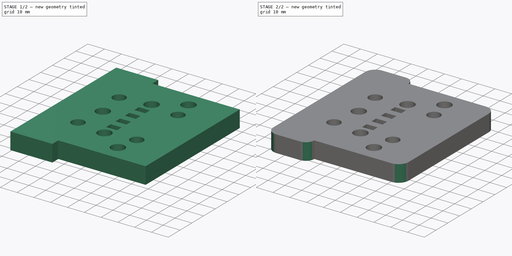
[diagram: build sequence overview — one tinted view per stage of 2, left to right]
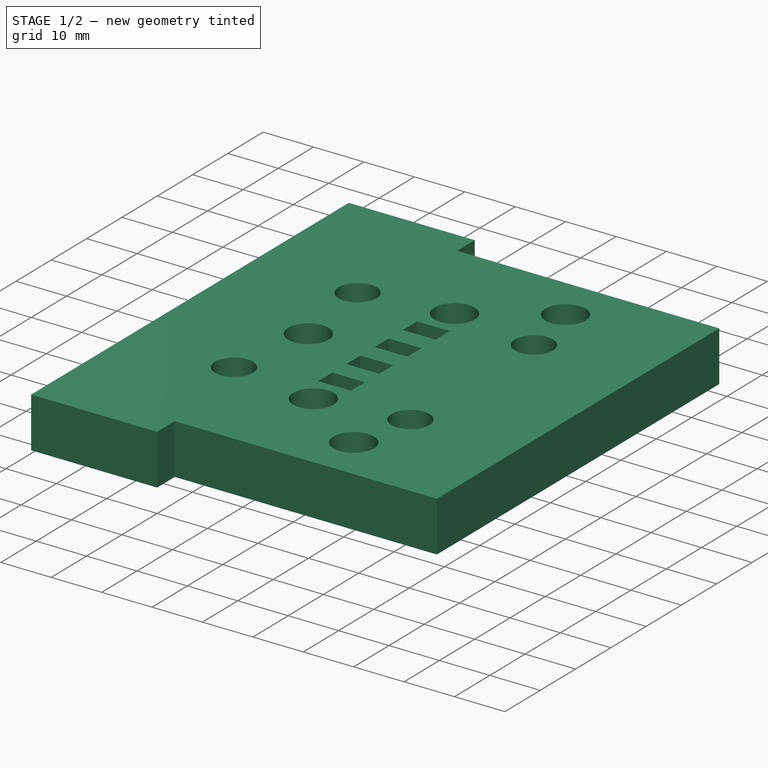
[diagram: stage 1 of 2 — iso view after this stage's code; geometry added in this stage tinted green]
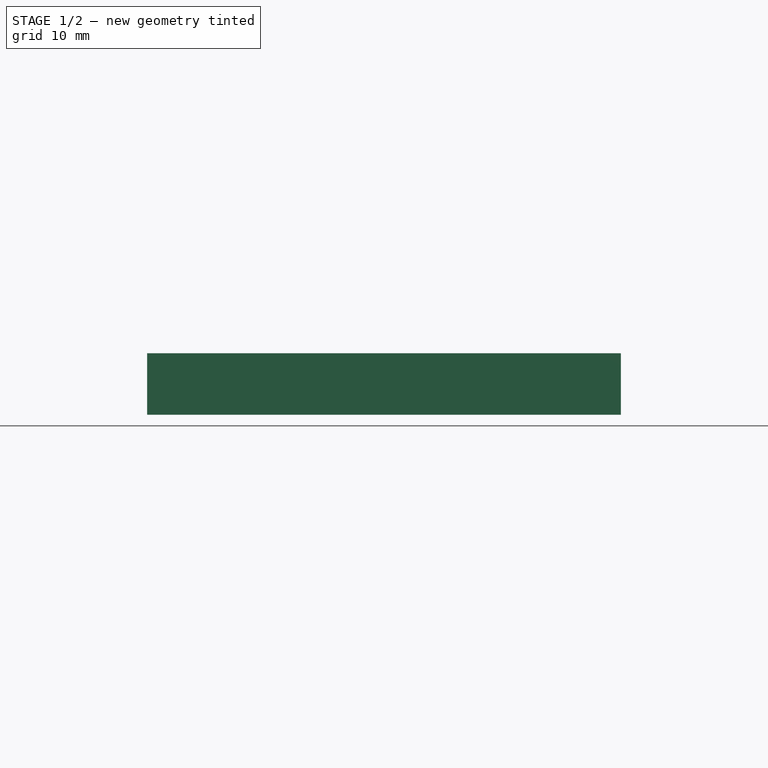
[diagram: stage 1 of 2 — front view after this stage's code; geometry added in this stage tinted green]
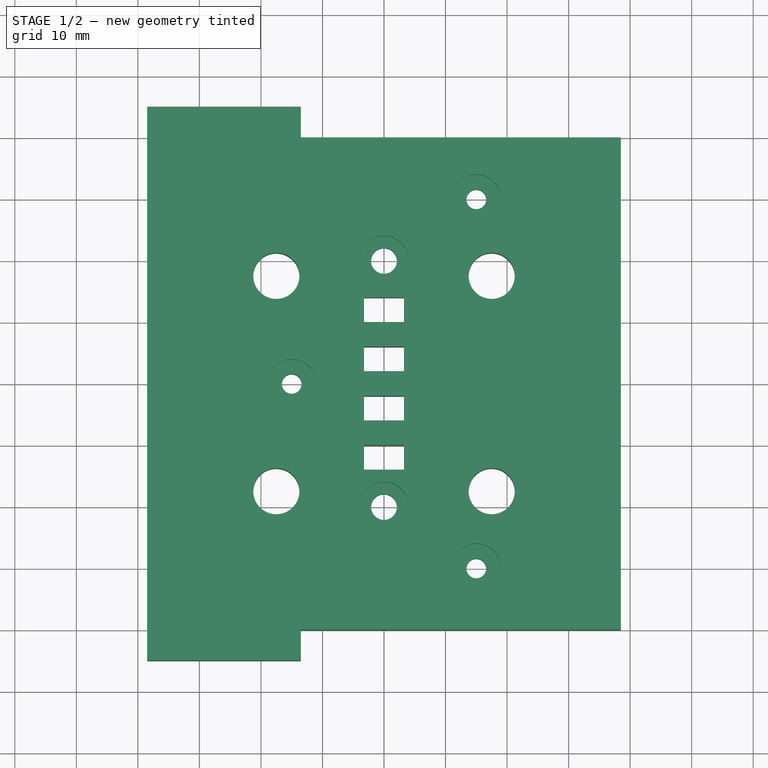
[diagram: stage 1 of 2 — top view after this stage's code; geometry added in this stage tinted green]
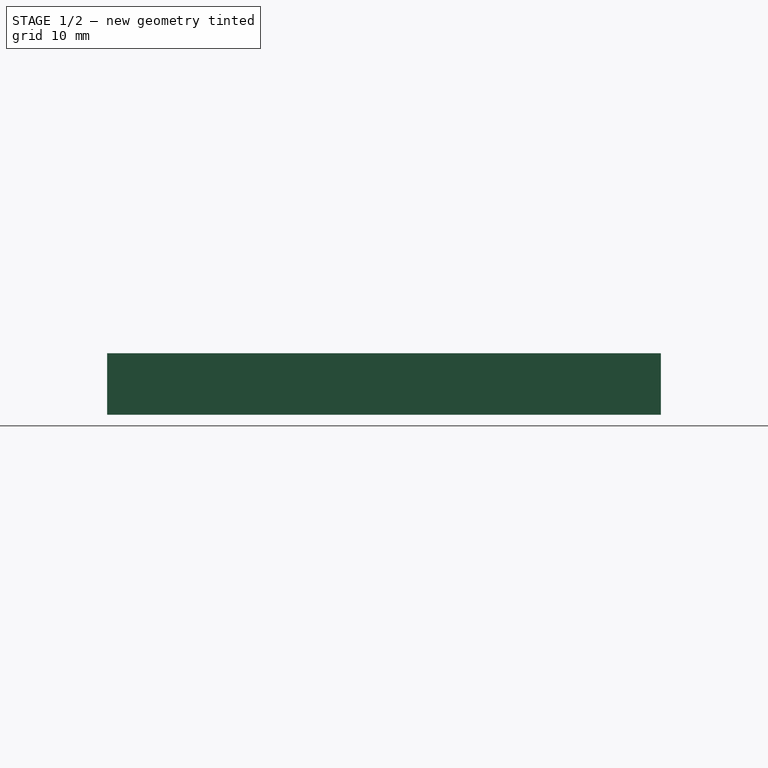
[diagram: stage 1 of 2 — right view after this stage's code; geometry added in this stage tinted green]
FCSTD DOCUMENT  (FreeCAD 1.0R39109 (Git))
Label: ARM_TargetGantryV2_Plate_V1
License: All rights reserved
LicenseURL: https://en.wikipedia.org/wiki/All_rights_reserved
objects: Sketcher::SketchObject×2, PartDesign::Fillet×2, PartDesign::Pad×1, PartDesign::Pocket×1, PartDesign::Body×1
note: 17 computed .brp shape members not serialized (recipe doc carries the construction recipe); baked Part::Feature solids carry a one-line shape summary decoded from their .brp

FEATURE [Sketcher::SketchObject] Sketch
  ArcFitTolerance = 1e-06
  AttachmentSupport = -> [XY_Plane]
  FullyConstrained = false
  MakeInternals = false
  MapMode = 5
  sketch-geometry (59):
    g0: LineSegment [constr] StartX=0 StartY=0 StartZ=0 EndX=-15 EndY=0 EndZ=0
    g1: LineSegment [constr] StartX=0 StartY=0 StartZ=0 EndX=15 EndY=0 EndZ=0
    g2: LineSegment [constr] StartX=15 StartY=0 StartZ=0 EndX=15 EndY=-30 EndZ=0
    g3: Circle CenterX=-15 CenterY=0 CenterZ=0 NormalX=0 NormalY=0 NormalZ=1 AngleXU=0 Radius=1.6
    g4: Circle CenterX=15 CenterY=-30 CenterZ=0 NormalX=0 NormalY=0 NormalZ=1 AngleXU=0 Radius=1.6
    g5: LineSegment [constr] StartX=0 StartY=0 StartZ=0 EndX=0 EndY=4 EndZ=0
    g6: LineSegment [constr] StartX=0 StartY=0 StartZ=0 EndX=0 EndY=-4 EndZ=0
    g7: LineSegment StartX=-3.25 StartY=2 StartZ=0 EndX=3.25 EndY=2 EndZ=0
    g8: LineSegment StartX=3.25 StartY=2 StartZ=0 EndX=3.25 EndY=6 EndZ=0
    g9: LineSegment StartX=3.25 StartY=6 StartZ=0 EndX=-3.25 EndY=6 EndZ=0
    g10: LineSegment StartX=-3.25 StartY=6 StartZ=0 EndX=-3.25 EndY=2 EndZ=0
    g11: GeomPoint [constr] X=0 Y=4 Z=0
    g12: LineSegment StartX=-3.25 StartY=-6 StartZ=0 EndX=3.25 EndY=-6 EndZ=0
    g13: LineSegment StartX=3.25 StartY=-6 StartZ=0 EndX=3.25 EndY=-2 EndZ=0
    g14: LineSegment StartX=3.25 StartY=-2 StartZ=0 EndX=-3.25 EndY=-2 EndZ=0
    g15: LineSegment StartX=-3.25 StartY=-2 StartZ=0 EndX=-3.25 EndY=-6 EndZ=0
    g16: GeomPoint [constr] X=0 Y=-4 Z=0
    g17: LineSegment [constr] StartX=0 StartY=4 StartZ=0 EndX=0 EndY=12 EndZ=0
    g18: LineSegment [constr] StartX=0 StartY=-4 StartZ=0 EndX=0 EndY=-12 EndZ=0
    g19: LineSegment StartX=-3.25 StartY=10 StartZ=0 EndX=3.25 EndY=10 EndZ=0
    g20: LineSegment StartX=3.25 StartY=10 StartZ=0 EndX=3.25 EndY=14 EndZ=0
    g21: LineSegment StartX=3.25 StartY=14 StartZ=0 EndX=-3.25 EndY=14 EndZ=0
    g22: LineSegment StartX=-3.25 StartY=14 StartZ=0 EndX=-3.25 EndY=10 EndZ=0
    g23: GeomPoint [constr] X=0 Y=12 Z=0
    g24: LineSegment StartX=-3.25 StartY=-14 StartZ=0 EndX=3.25 EndY=-14 EndZ=0
    g25: LineSegment StartX=3.25 StartY=-14 StartZ=0 EndX=3.25 EndY=-10 EndZ=0
    g26: LineSegment StartX=3.25 StartY=-10 StartZ=0 EndX=-3.25 EndY=-10 EndZ=0
    g27: LineSegment StartX=-3.25 StartY=-10 StartZ=0 EndX=-3.25 EndY=-14 EndZ=0
    g28: GeomPoint [constr] X=0 Y=-12 Z=0
    g29: LineSegment [constr] StartX=0 StartY=-12 StartZ=0 EndX=0 EndY=-20 EndZ=0
    g30: LineSegment [constr] StartX=0 StartY=12 StartZ=0 EndX=0 EndY=20 EndZ=0
    g31: Circle CenterX=0 CenterY=20 CenterZ=0 NormalX=0 NormalY=0 NormalZ=1 AngleXU=0 Radius=2.1
    g32: Circle CenterX=0 CenterY=-20 CenterZ=0 NormalX=0 NormalY=0 NormalZ=1 AngleXU=0 Radius=2.1
    g33: LineSegment [constr] StartX=15 StartY=0 StartZ=0 EndX=15 EndY=30 EndZ=0
    g34: Circle CenterX=15 CenterY=30 CenterZ=0 NormalX=0 NormalY=0 NormalZ=1 AngleXU=0 Radius=1.6
    g35: LineSegment [constr] StartX=-38.5 StartY=-40 StartZ=0 EndX=38.5 EndY=-40 EndZ=0
    g36: LineSegment [constr] StartX=38.5 StartY=-40 StartZ=0 EndX=38.5 EndY=40 EndZ=0
    g37: LineSegment [constr] StartX=38.5 StartY=40 StartZ=0 EndX=-38.5 EndY=40 EndZ=0
    g38: LineSegment [constr] StartX=-38.5 StartY=40 StartZ=0 EndX=-38.5 EndY=-40 EndZ=0
    g39: GeomPoint [constr] X=0 Y=0 Z=0
    g40: LineSegment StartX=-38.5 StartY=40 StartZ=0 EndX=-38.5 EndY=-40 EndZ=0
    g41: LineSegment StartX=38.5 StartY=40 StartZ=0 EndX=38.5 EndY=-40 EndZ=0
    g42: LineSegment [constr] StartX=-17.5 StartY=-17.5 StartZ=0 EndX=17.5 EndY=-17.5 EndZ=0
    g43: LineSegment [constr] StartX=17.5 StartY=-17.5 StartZ=0 EndX=17.5 EndY=17.5 EndZ=0
    g44: LineSegment [constr] StartX=17.5 StartY=17.5 StartZ=0 EndX=-17.5 EndY=17.5 EndZ=0
    g45: LineSegment [constr] StartX=-17.5 StartY=17.5 StartZ=0 EndX=-17.5 EndY=-17.5 EndZ=0
    g46: GeomPoint [constr] X=0 Y=0 Z=0
    g47: Circle CenterX=-17.5 CenterY=17.5 CenterZ=0 NormalX=0 NormalY=0 NormalZ=1 AngleXU=0 Radius=3.75
    g48: Circle CenterX=-17.5 CenterY=-17.5 CenterZ=0 NormalX=0 NormalY=0 NormalZ=1 AngleXU=0 Radius=3.75
    g49: Circle CenterX=17.5 CenterY=-17.5 CenterZ=0 NormalX=0 NormalY=0 NormalZ=1 AngleXU=0 Radius=3.75
    g50: Circle CenterX=17.5 CenterY=17.5 CenterZ=0 NormalX=0 NormalY=0 NormalZ=1 AngleXU=0 Radius=3.75
    g51: LineSegment StartX=-38.5 StartY=-40 StartZ=0 EndX=-38.5 EndY=-45 EndZ=0
    g52: LineSegment StartX=-38.5 StartY=-45 StartZ=0 EndX=-13.5 EndY=-45 EndZ=0
    g53: LineSegment StartX=-13.5 StartY=-45 StartZ=0 EndX=-13.5 EndY=-40 EndZ=0
    g54: LineSegment StartX=-13.5 StartY=40 StartZ=0 EndX=-13.5 EndY=45 EndZ=0
    g55: LineSegment StartX=-13.5 StartY=45 StartZ=0 EndX=-38.5 EndY=45 EndZ=0
    g56: LineSegment StartX=-38.5 StartY=45 StartZ=0 EndX=-38.5 EndY=40 EndZ=0
    g57: LineSegment StartX=-13.5 StartY=40 StartZ=0 EndX=38.5 EndY=40 EndZ=0
    g58: LineSegment StartX=-13.5 StartY=-40 StartZ=0 EndX=38.5 EndY=-40 EndZ=0
  constraints (139):
    c: Distance(g0) = 15
    c: Distance(g1) = 15
    c: Distance(g2) = 30
    c: Coincident(g2,g1)
    c: Vertical(g2)
    c: Diameter(g3) = 3.2
    c: Coincident(g3,g0)
    c: Diameter(g4) = 3.2
    c: Coincident(g4,g2)
    c: Distance(g5) = 4
    c: PointOnObject(g5,g-2)
    c: Distance(g6) = 4
    c: PointOnObject(g6,g-2)
    c: Coincident(g7,g8)
    c: Coincident(g8,g9)
    c: Coincident(g9,g10)
    c: Coincident(g10,g7)
    c: Horizontal(g7)
    c: Horizontal(g9)
    c: Vertical(g8)
    c: Vertical(g10)
    c: Symmetric(g9,g7,g11)
    c: Distance(g8,g10) = 6.5
    c: Distance(g7,g9) = 4
    c: Coincident(g11,g5)
    c: Coincident(g12,g13)
    c: Coincident(g13,g14)
    c: Coincident(g14,g15)
    c: Coincident(g15,g12)
    c: Horizontal(g12)
    c: Horizontal(g14)
    c: Vertical(g13)
    c: Vertical(g15)
    c: Symmetric(g14,g12,g16)
    c: Distance(g13,g15) = 6.5
    c: Distance(g12,g14) = 4
    c: Coincident(g16,g6)
    c: Distance(g17) = 8
    c: Coincident(g17,g5)
    c: PointOnObject(g17,g-2)
    c: Distance(g18) = 8
    c: Coincident(g18,g6)
    c: PointOnObject(g18,g-2)
    c: Coincident(g19,g20)
    c: Coincident(g20,g21)
    c: Coincident(g21,g22)
    c: Coincident(g22,g19)
    c: Horizontal(g19)
    c: Horizontal(g21)
    c: Vertical(g20)
    c: Vertical(g22)
    c: Symmetric(g21,g19,g23)
    c: Distance(g20,g22) = 6.5
    c: Distance(g19,g21) = 4
    c: Coincident(g23,g17)
    c: Coincident(g24,g25)
    c: Coincident(g25,g26)
    c: Coincident(g26,g27)
    c: Coincident(g27,g24)
    c: Horizontal(g24)
    c: Horizontal(g26)
    c: Vertical(g25)
    c: Vertical(g27)
    c: Symmetric(g26,g24,g28)
    c: Distance(g25,g27) = 6.5
    c: Distance(g24,g26) = 4
    c: Coincident(g28,g18)
    c: Distance(g29) = 8
    c: Coincident(g29,g18)
    c: PointOnObject(g29,g-2)
    c: Distance(g30) = 8
    c: Coincident(g30,g17)
    c: PointOnObject(g30,g-2)
    c: Diameter(g31) = 4.2
    c: Coincident(g31,g30)
    c: Diameter(g32) = 4.2
    c: Coincident(g32,g29)
    c: Distance(g33) = 30
    c: Coincident(g33,g1)
    c: Vertical(g33)
    c: Diameter(g34) = 3.2
    c: Coincident(g34,g33)
    c: Coincident(g35,g36)
    c: Coincident(g36,g37)
    c: Coincident(g37,g38)
    c: Coincident(g38,g35)
    c: Horizontal(g35)
    c: Horizontal(g37)
    c: Vertical(g36)
    c: Vertical(g38)
    c: Symmetric(g37,g35,g39)
    c: Distance(g36,g38) = 77
    c: Distance(g35,g37) = 80
    c: Coincident(g39,g0)
    c: Coincident(g40,g35)
    c: Vertical(g40)
    c: Coincident(g41,g36)
    c: Coincident(g41,g35)
    c: Coincident(g42,g43)
    c: Coincident(g43,g44)
    c: Coincident(g44,g45)
    c: Coincident(g45,g42)
    c: Horizontal(g42)
    c: Horizontal(g44)
    c: Vertical(g43)
    c: Vertical(g45)
    c: Symmetric(g44,g42,g46)
    c: Distance(g43,g45) = 35
    c: Distance(g42,g44) = 35
    c: Coincident(g46,g1)
    c: Diameter(g47) = 7.5
    c: Coincident(g47,g44)
    c: Diameter(g48) = 7.5
    c: Coincident(g48,g42)
    c: Diameter(g49) = 7.5
    c: Coincident(g49,g42)
    c: Diameter(g50) = 7.5
    c: Coincident(g50,g43)
    c: Coincident(g51,g52)
    c: Coincident(g52,g53)
    c: Vertical(g51)
    c: Vertical(g53)
    c: Horizontal(g52)
    c: Distance(g51,g53) = 25
    c: Distance(g52,g51) = 5
    c: Coincident(g51,g35)
    c: Coincident(g54,g55)
    c: Coincident(g55,g56)
    c: Horizontal(g55)
    c: Vertical(g54)
    c: Vertical(g56)
    c: Distance(g54,g56) = 25
    c: Distance(g56,g55) = 5
    c: Coincident(g57,g54)
    c: Coincident(g57,g36)
    c: Horizontal(g57)
    c: Coincident(g58,g53)
    c: Coincident(g58,g35)
    c: Horizontal(g58)
FEATURE [PartDesign::Pad] Pad
  Direction = (0,0,1)
  Length = 10
  Length2 = 10
  Profile = -> Sketch
  ReferenceAxis = -> Sketch [N_Axis]
  Refine = true
  Suppressed = false
  Type = 0
FEATURE [Sketcher::SketchObject] Sketch001
  ArcFitTolerance = 1e-06
  AttachmentSupport = -> [Pad]
  ExternalGeometry = -> [Pad]
  FullyConstrained = true
  MakeInternals = false
  MapMode = 5
  Placement = pos=(0,0,10) rot=(0,0,1;0rad)
  sketch-geometry (5):
    g0: Circle CenterX=-15 CenterY=0 CenterZ=0 NormalX=0 NormalY=0 NormalZ=1 AngleXU=0 Radius=4
    g1: Circle CenterX=15 CenterY=-30 CenterZ=0 NormalX=0 NormalY=0 NormalZ=1 AngleXU=0 Radius=4
    g2: Circle CenterX=15 CenterY=30 CenterZ=0 NormalX=0 NormalY=0 NormalZ=1 AngleXU=0 Radius=4
    g3: Circle CenterX=0 CenterY=20 CenterZ=0 NormalX=0 NormalY=0 NormalZ=1 AngleXU=0 Radius=4
    g4: Circle CenterX=0 CenterY=-20 CenterZ=0 NormalX=0 NormalY=0 NormalZ=1 AngleXU=0 Radius=4
  constraints (10):
    c: Diameter(g0) = 8
    c: Coincident(g0,g-4)
    c: Diameter(g1) = 8
    c: Coincident(g1,g-3)
    c: Diameter(g2) = 8
    c: Coincident(g2,g-5)
    c: Diameter(g3) = 8
    c: Coincident(g3,g-7)
    c: Diameter(g4) = 8
    c: Coincident(g4,g-6)
FEATURE [PartDesign::Pocket] Pocket
  BaseFeature = -> Pad
  Direction = (0,0,-1)
  Length = 4
  Length2 = 5
  Profile = -> Sketch001
  ReferenceAxis = -> Sketch001 [N_Axis]
  Refine = true
  Suppressed = false
  Type = 0
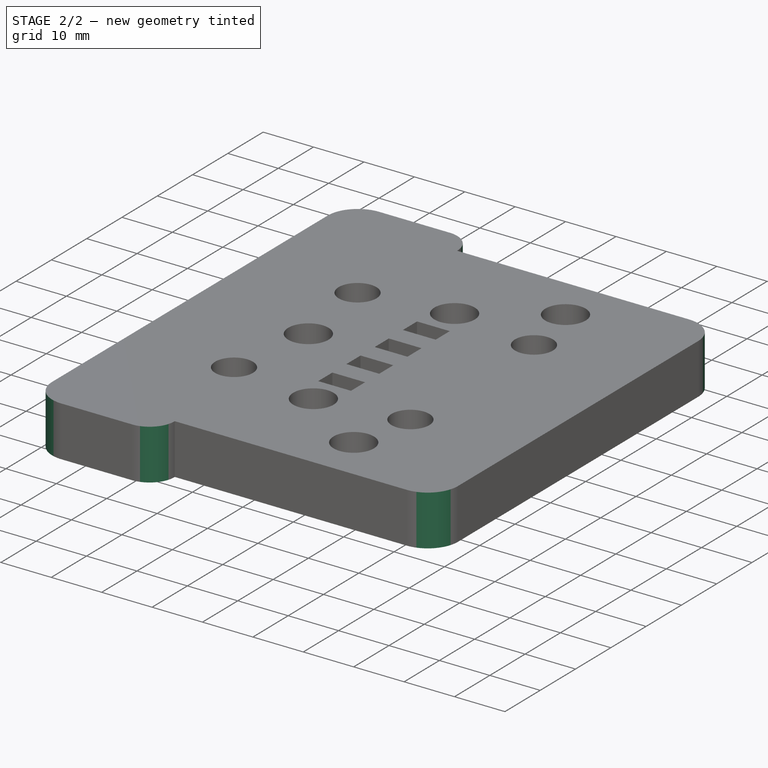
[diagram: stage 2 of 2 — iso view after this stage's code; geometry added in this stage tinted green]
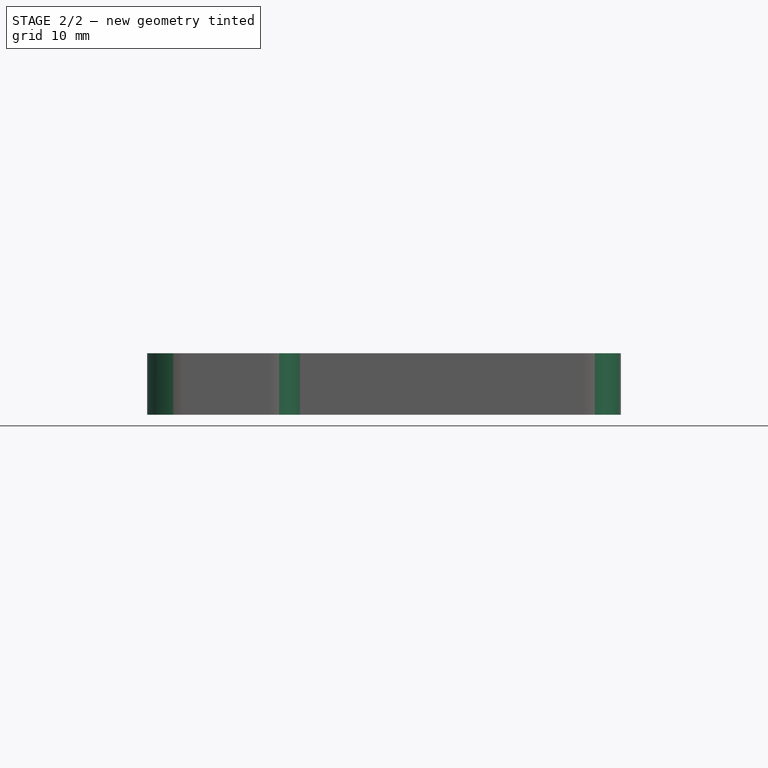
[diagram: stage 2 of 2 — front view after this stage's code; geometry added in this stage tinted green]
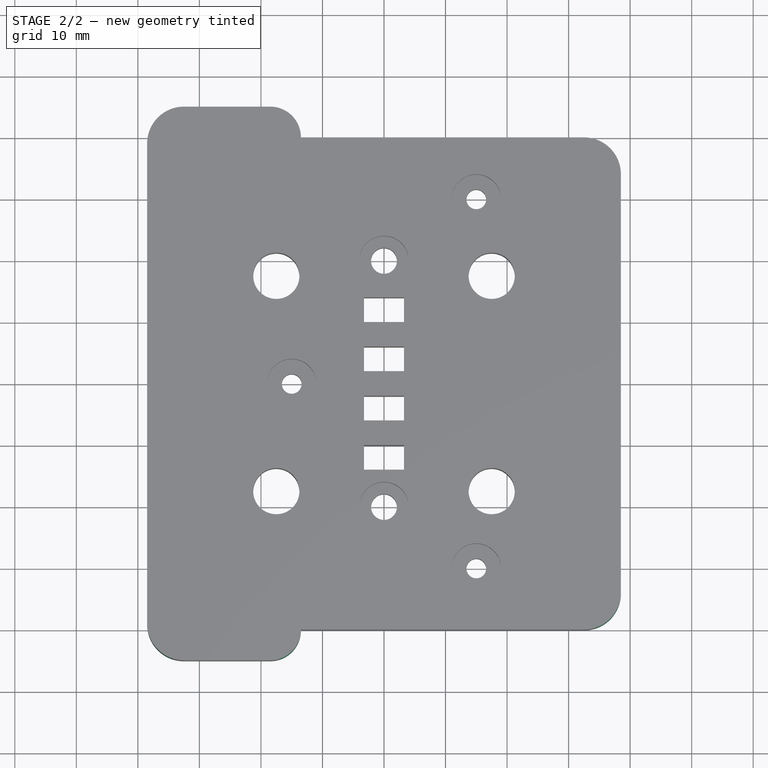
[diagram: stage 2 of 2 — top view after this stage's code; geometry added in this stage tinted green]
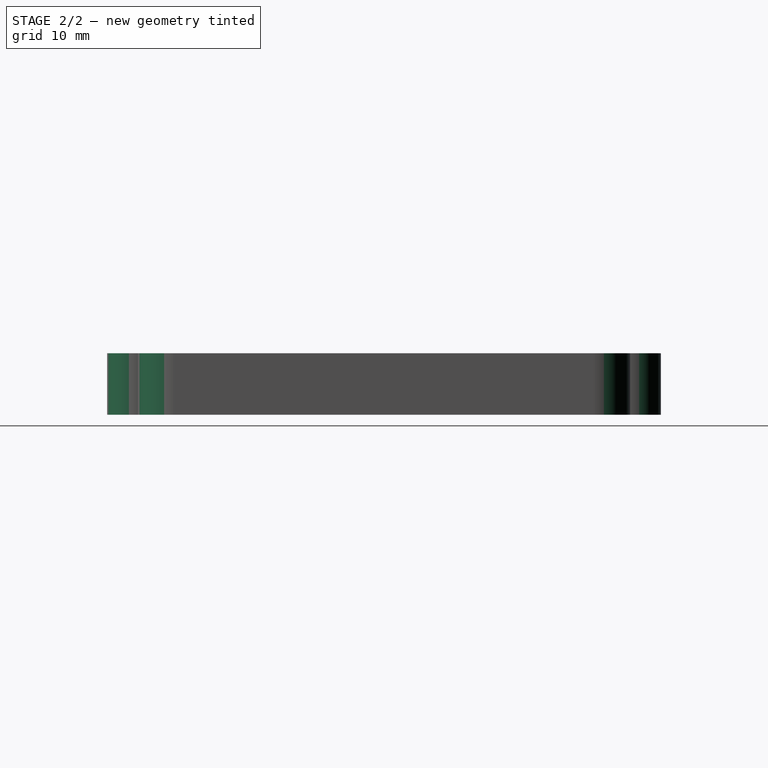
[diagram: stage 2 of 2 — right view after this stage's code; geometry added in this stage tinted green]
FEATURE [PartDesign::Fillet] Fillet
  Base = -> Pocket [Edge72,Edge71,Edge8,Edge5]
  BaseFeature = -> Pocket
  Radius = 6
  Refine = true
  SupportTransform = false
  Suppressed = false
  UseAllEdges = false
FEATURE [PartDesign::Fillet] Fillet001
  Base = -> Fillet [Edge43,Edge83]
  BaseFeature = -> Fillet
  Radius = 4.99
  Refine = true
  SupportTransform = false
  Suppressed = false
  UseAllEdges = false
FEATURE [PartDesign::Body] Body
  AllowCompound = false
  Group = -> [Sketch,Pad,Sketch001,Pocket,Fillet,Fillet001]
  Origin = -> Origin
  Tip = -> Fillet001
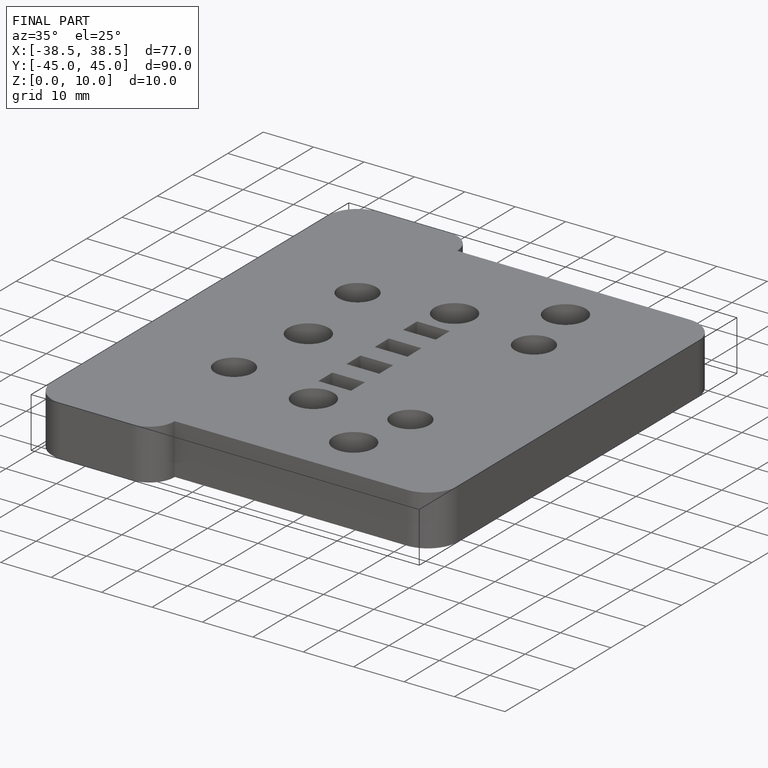
[diagram: finished part — iso view with bounding-box wireframe]
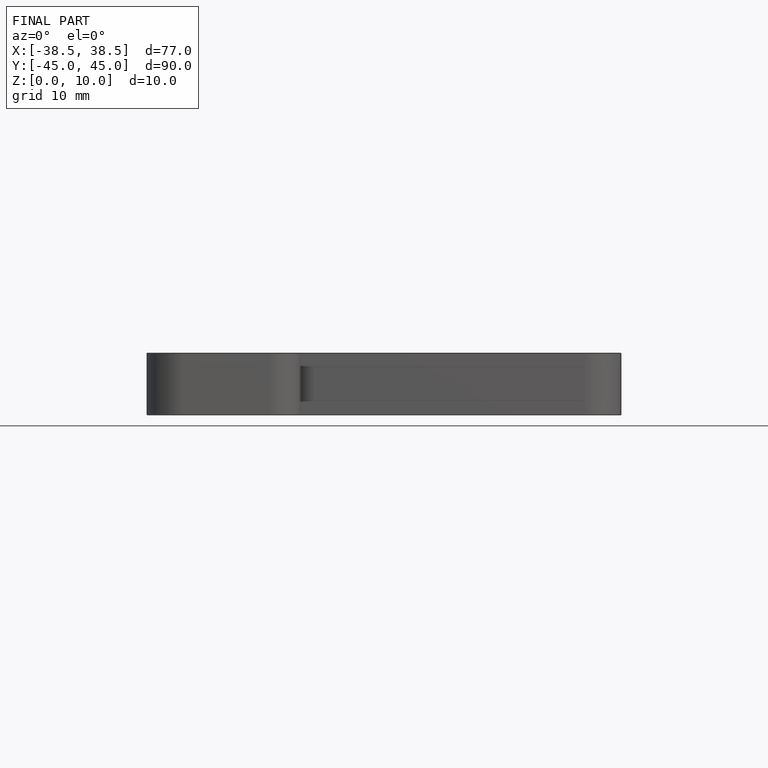
[diagram: finished part — front view with bounding-box wireframe]
